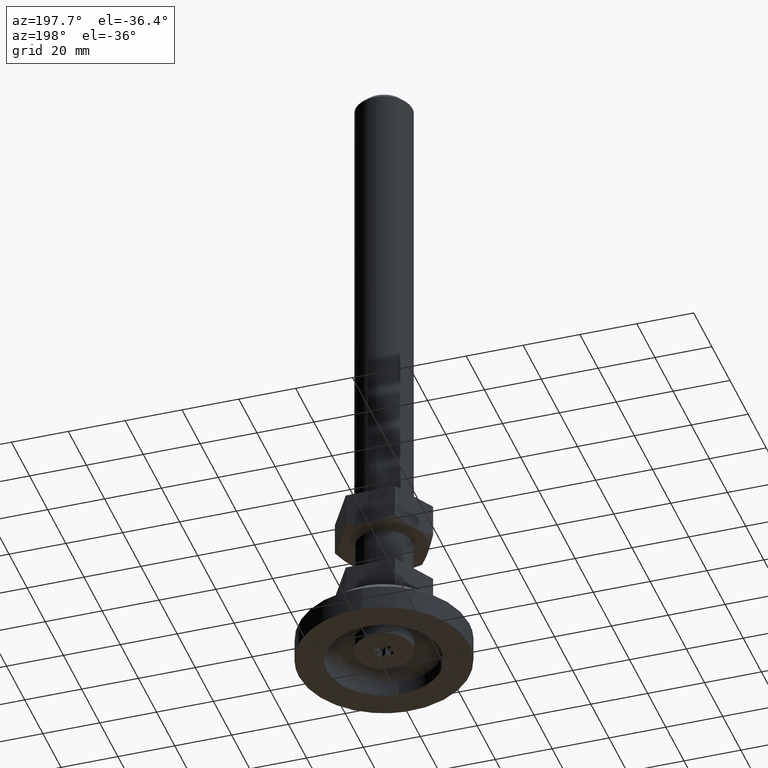
[diagram: clean part render]
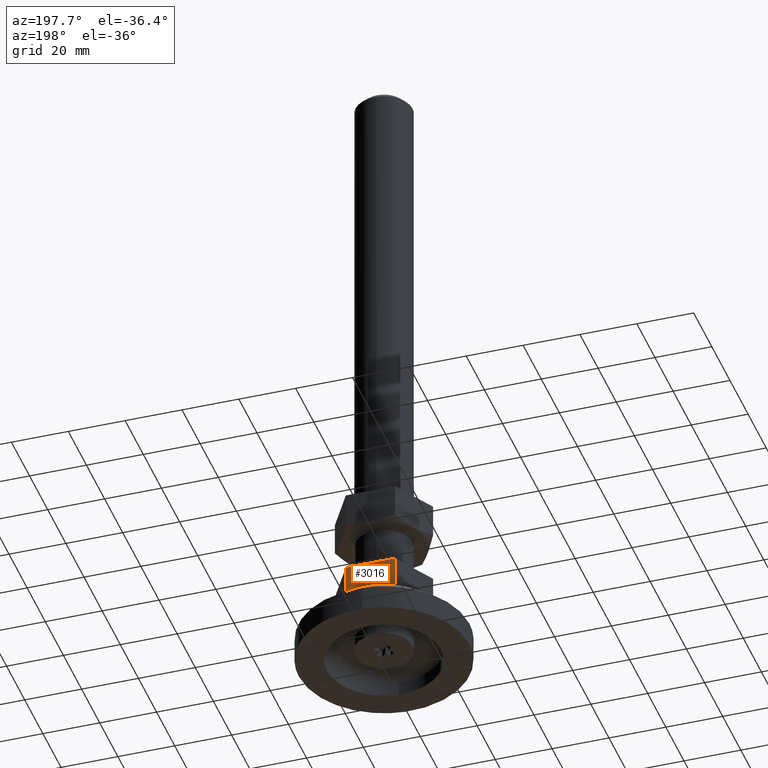
[diagram: same view with one face highlighted and labeled with its STEP entity id]
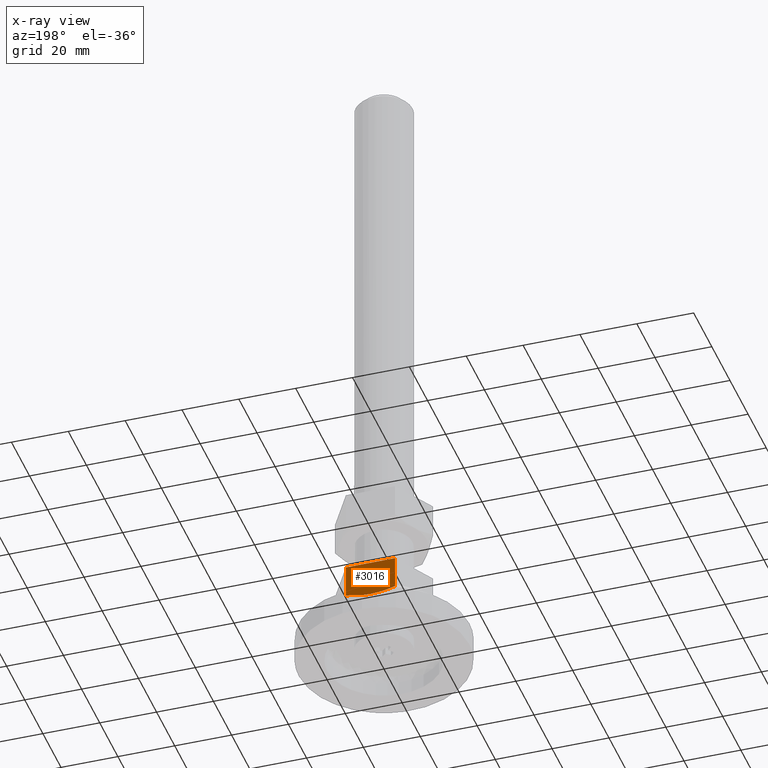
[diagram: x-ray of the same camera — body ghosted, the highlighted face saturated]
A machine part, auxiliary view. The second image highlights one B-rep face of the part: STEP entity #3016.
The next image is the same camera in x-ray: the body ghosted, the highlighted face saturated — about 0% of this face is hidden behind the body in this view.
In plain terms, the highlighted face is a freeform B-spline surface patch.
Its self-contained STEP definition (entity closure, byte-faithful):
#2761=CARTESIAN_POINT('',(-8.639746000000001,15.0,30.0));
#2762=VERTEX_POINT('',#2761);
#2789=CARTESIAN_POINT('',(8.639746000000001,15.0,30.0));
#2790=VERTEX_POINT('',#2789);
#2796=CARTESIAN_POINT('',(-8.639746000000001,15.0,30.0));
#2797=CARTESIAN_POINT('',(8.639746000000001,15.0,30.0));
#2798=QUASI_UNIFORM_CURVE('',1,(#2796,#2797),.UNSPECIFIED.,.F.,.U.);
#2799=EDGE_CURVE('',#2762,#2790,#2798,.T.);
#2946=CARTESIAN_POINT('',(8.639746000000001,15.0,18.345671394023402));
#2947=VERTEX_POINT('',#2946);
#2969=CARTESIAN_POINT('',(8.639746000000001,15.0,30.0));
#2970=CARTESIAN_POINT('',(8.639746000000001,15.0,18.345671394023402));
#2971=QUASI_UNIFORM_CURVE('',1,(#2969,#2970),.UNSPECIFIED.,.F.,.U.);
#2972=EDGE_CURVE('',#2790,#2947,#2971,.T.);
#2978=CARTESIAN_POINT('',(-9.502856591908994,15.0,16.363081782504992));
#2979=CARTESIAN_POINT('',(-9.502856591908994,15.0,30.648758898577029));
#2980=CARTESIAN_POINT('',(9.502857055381087,15.0,16.363081782504992));
#2981=CARTESIAN_POINT('',(9.502857055381087,15.0,30.648758898577029));
#2982=B_SPLINE_SURFACE_WITH_KNOTS('',1,1,((#2978,#2980),(#2979,#2981)),.UNSPECIFIED.,.F.,.F.,.U.,(2,2),(2,2),(0.0,14.285677116072041),(0.0,19.005713647290079),.UNSPECIFIED.);
#2983=ORIENTED_EDGE('',*,*,#2972,.T.);
#2984=CARTESIAN_POINT('',(-8.639746000000001,15.0,18.345671394023402));
#2985=VERTEX_POINT('',#2984);
#2986=CARTESIAN_POINT('',(8.639746000000001,15.0,18.345671394023402));
#2987=CARTESIAN_POINT('',(7.243065403558346,15.0,17.943201150343469));
#2988=CARTESIAN_POINT('',(5.828098707583267,15.0,17.608112828349459));
#2989=CARTESIAN_POINT('',(4.025000240808052,15.0,17.315975503435240));
#2990=CARTESIAN_POINT('',(3.481481264012244,15.0,17.237876046936019));
#2991=CARTESIAN_POINT('',(2.933746094967384,15.0,17.175312715864688));
#2992=CARTESIAN_POINT('',(2.567617441095458,15.0,17.137185060879109));
#2993=CARTESIAN_POINT('',(2.383861673901584,15.0,17.119895832697981));
#2994=CARTESIAN_POINT('',(1.465291907568254,15.000000000000011,17.042931423502399));
#2995=CARTESIAN_POINT('',(0.732753118449166,15.0,17.011912443007841));
#2996=CARTESIAN_POINT('',(-0.727630583971163,15.0,17.011768473679211));
#2997=CARTESIAN_POINT('',(-1.455476411894552,15.0,17.042631424531269));
#2998=CARTESIAN_POINT('',(-2.906706002747131,15.0,17.163194633453880));
#2999=CARTESIAN_POINT('',(-3.630093047437011,15.0,17.252851617846819));
#3000=CARTESIAN_POINT('',(-5.072865540092755,15.0,17.484931105763678));
#3001=CARTESIAN_POINT('',(-5.792395982895497,14.999999999999989,17.627336067024359));
#3002=CARTESIAN_POINT('',(-7.227461233591750,15.0,17.957191362850651));
#3003=CARTESIAN_POINT('',(-7.936833729160911,15.0,18.143118803509051));
#3004=CARTESIAN_POINT('',(-8.639746000000073,15.0,18.345671394023199));
#3005=B_SPLINE_CURVE_WITH_KNOTS('',3,(#2986,#2987,#2988,#2989,#2990,#2991,#2992,#2993,#2994,#2995,#2996,#2997,#2998,#2999,#3000,#3001,#3002,#3003,#3004),.UNSPECIFIED.,.F.,.U.,(4,2,1,2,2,2,2,2,2,4),(0.0,0.250000000000000,0.312500000000000,0.343750000000000,0.375000000000000,0.500000000000000,0.625000000000000,0.750000000000000,0.875000000000000,1.0),.UNSPECIFIED.);
#3006=EDGE_CURVE('',#2947,#2985,#3005,.T.);
#3007=ORIENTED_EDGE('',*,*,#3006,.T.);
#3008=CARTESIAN_POINT('',(-8.639746000000001,15.0,30.0));
#3009=CARTESIAN_POINT('',(-8.639746000000001,15.0,18.345671394023402));
#3010=QUASI_UNIFORM_CURVE('',1,(#3008,#3009),.UNSPECIFIED.,.F.,.U.);
#3011=EDGE_CURVE('',#2762,#2985,#3010,.T.);
#3012=ORIENTED_EDGE('',*,*,#3011,.F.);
#3013=ORIENTED_EDGE('',*,*,#2799,.T.);
#3014=EDGE_LOOP('',(#2983,#3007,#3012,#3013));
#3015=FACE_OUTER_BOUND('',#3014,.T.);
#3016=ADVANCED_FACE('',(#3015),#2982,.T.);